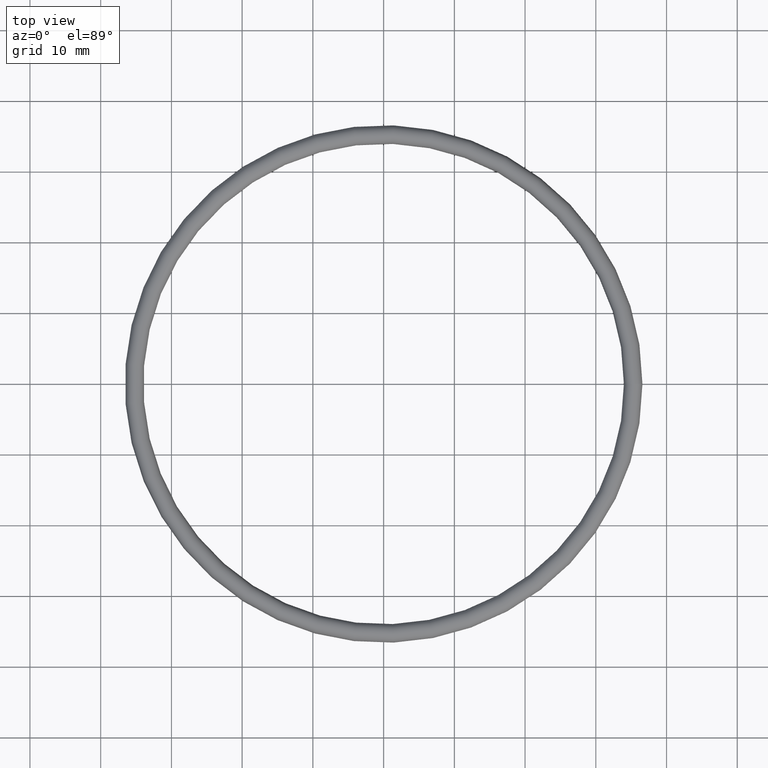
[diagram: clean part render]
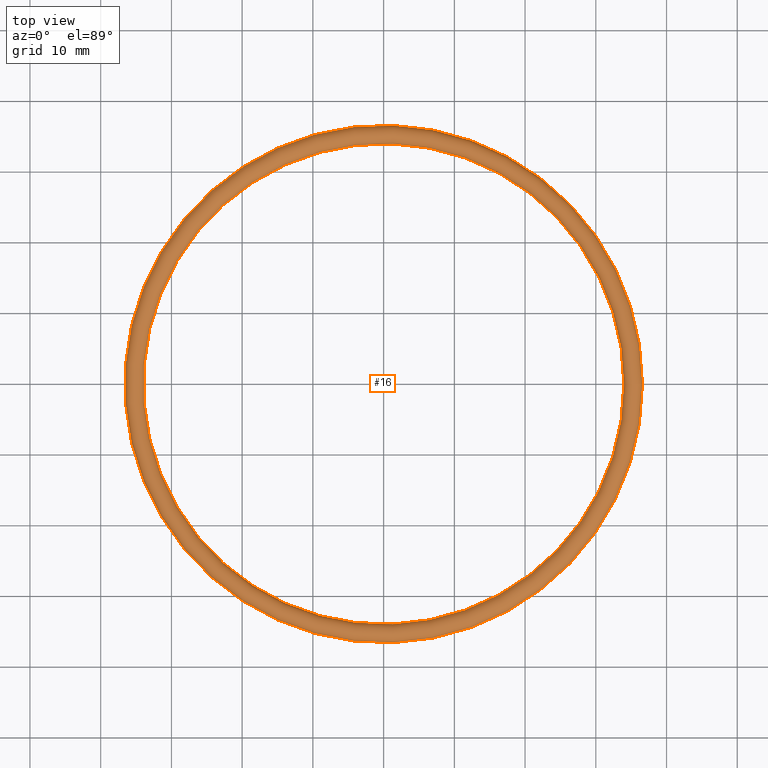
[diagram: same view with one face highlighted and labeled with its STEP entity id]
A machine part, top view. The second image highlights one B-rep face of the part: STEP entity #16.
In plain terms, the highlighted toroidal blend (fillet) surface has major radius 35.2806 mm and minor (blend) radius 1.3081 mm.
Its self-contained STEP definition (entity closure, byte-faithful):
#12=VERTEX_POINT('',#37);
#13=VERTEX_LOOP('',#12);
#14=FACE_BOUND('',#13,.T.);
#15=TOROIDAL_SURFACE('',#30,1.389,0.0515);
#16=ADVANCED_FACE('',(#14),#15,.T.);
#30=AXIS2_PLACEMENT_3D('',#36,#33,#34);
#33=DIRECTION('',(0.,0.,1.));
#34=DIRECTION('',(1.,0.,0.));
#36=CARTESIAN_POINT('',(0.,0.,0.));
#37=CARTESIAN_POINT('',(1.3375,0.,-6.30693101560887E-18));